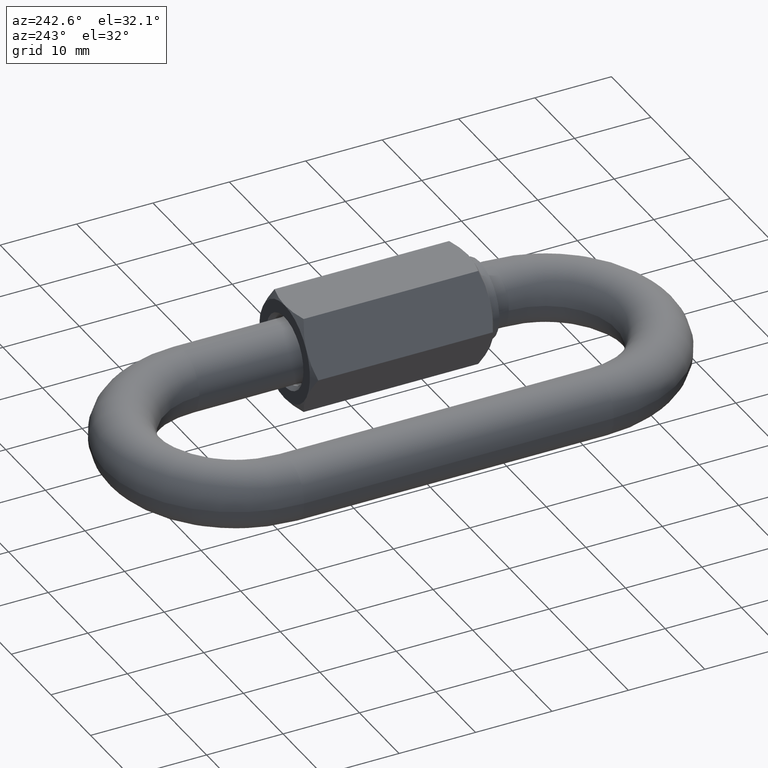
[diagram: clean part render]
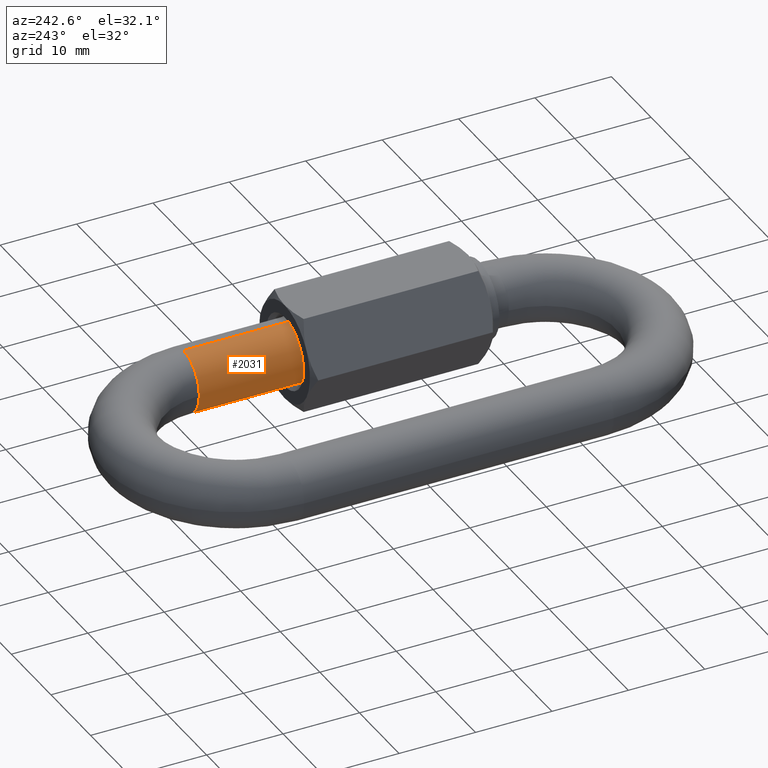
[diagram: same view with one face highlighted and labeled with its STEP entity id]
A machine part, auxiliary view. The second image highlights one B-rep face of the part: STEP entity #2031.
In plain terms, the highlighted cylindrical surface (edge-blend (fillet) strip) has radius 4 mm, axis along (-0, -1, -0).
Its self-contained STEP definition (entity closure, byte-faithful):
#132 = CYLINDRICAL_SURFACE ( 'NONE', #948, 3.999999999999997300 ) ;
#210 = DIRECTION ( 'NONE',  ( 0.0000000000000000000, 0.0000000000000000000, -1.000000000000000000 ) ) ;
#213 = CARTESIAN_POINT ( 'NONE',  ( 9.249999999999998200, 20.24999999999999300, -4.898587196589408900E-016 ) ) ;
#244 = DIRECTION ( 'NONE',  ( 0.0000000000000000000, 0.0000000000000000000, 1.000000000000000000 ) ) ;
#249 = CARTESIAN_POINT ( 'NONE',  ( 13.24999999999999600, 20.24999999999999300, 0.0000000000000000000 ) ) ;
#294 = CIRCLE ( 'NONE', #2000, 3.999999999999997300 ) ;
#338 = VECTOR ( 'NONE', #1400, 1000.000000000000000 ) ;
#447 = EDGE_CURVE ( 'NONE', #817, #1095, #688, .T. ) ;
#498 = CIRCLE ( 'NONE', #1762, 3.999999999999997300 ) ;
#499 = CARTESIAN_POINT ( 'NONE',  ( 13.24999999999999600, 20.24999999999999300, 0.0000000000000000000 ) ) ;
#513 = VERTEX_POINT ( 'NONE', #1142 ) ;
#544 = DIRECTION ( 'NONE',  ( 0.0000000000000000000, 0.0000000000000000000, -1.000000000000000000 ) ) ;
#641 = FACE_OUTER_BOUND ( 'NONE', #988, .T. ) ;
#667 = AXIS2_PLACEMENT_3D ( 'NONE', #1777, #1634, #210 ) ;
#688 = CIRCLE ( 'NONE', #667, 3.999999999999997300 ) ;
#728 = ORIENTED_EDGE ( 'NONE', *, *, #1781, .F. ) ;
#739 = LINE ( 'NONE', #928, #338 ) ;
#756 = VECTOR ( 'NONE', #1731, 1000.000000000000000 ) ;
#760 = CARTESIAN_POINT ( 'NONE',  ( 13.24999999999999600, 20.24999999999999300, 3.999999999999997300 ) ) ;
#768 = ORIENTED_EDGE ( 'NONE', *, *, #1210, .F. ) ;
#804 = VERTEX_POINT ( 'NONE', #213 ) ;
#808 = DIRECTION ( 'NONE',  ( 0.0000000000000000000, 0.0000000000000000000, 1.000000000000000000 ) ) ;
#817 = VERTEX_POINT ( 'NONE', #1656 ) ;
#928 = CARTESIAN_POINT ( 'NONE',  ( 13.24999999999999600, 20.24999999999999300, -3.999999999999997300 ) ) ;
#948 = AXIS2_PLACEMENT_3D ( 'NONE', #1956, #1337, #544 ) ;
#988 = EDGE_LOOP ( 'NONE', ( #728, #1692, #768, #1588, #1638 ) ) ;
#1084 = CARTESIAN_POINT ( 'NONE',  ( 13.24999999999999600, 20.24999999999999300, 3.999999999999997300 ) ) ;
#1095 = VERTEX_POINT ( 'NONE', #1408 ) ;
#1099 = VERTEX_POINT ( 'NONE', #1084 ) ;
#1116 = EDGE_CURVE ( 'NONE', #513, #817, #739, .T. ) ;
#1142 = CARTESIAN_POINT ( 'NONE',  ( 13.24999999999999600, 20.24999999999999300, -3.999999999999997300 ) ) ;
#1210 = EDGE_CURVE ( 'NONE', #513, #804, #498, .T. ) ;
#1260 = LINE ( 'NONE', #760, #756 ) ;
#1279 = EDGE_CURVE ( 'NONE', #804, #1099, #294, .T. ) ;
#1281 = DIRECTION ( 'NONE',  ( 0.0000000000000000000, 1.000000000000000000, 0.0000000000000000000 ) ) ;
#1337 = DIRECTION ( 'NONE',  ( -0.0000000000000000000, -1.000000000000000000, -0.0000000000000000000 ) ) ;
#1400 = DIRECTION ( 'NONE',  ( -0.0000000000000000000, -1.000000000000000000, -0.0000000000000000000 ) ) ;
#1408 = CARTESIAN_POINT ( 'NONE',  ( 13.24999999999999600, 6.166025403784432000, 3.999999999999997300 ) ) ;
#1588 = ORIENTED_EDGE ( 'NONE', *, *, #1116, .T. ) ;
#1634 = DIRECTION ( 'NONE',  ( -0.0000000000000000000, 1.000000000000000000, -0.0000000000000000000 ) ) ;
#1638 = ORIENTED_EDGE ( 'NONE', *, *, #447, .T. ) ;
#1656 = CARTESIAN_POINT ( 'NONE',  ( 13.24999999999999600, 6.166025403784432000, -3.999999999999997300 ) ) ;
#1692 = ORIENTED_EDGE ( 'NONE', *, *, #1279, .F. ) ;
#1731 = DIRECTION ( 'NONE',  ( -0.0000000000000000000, -1.000000000000000000, -0.0000000000000000000 ) ) ;
#1762 = AXIS2_PLACEMENT_3D ( 'NONE', #499, #1281, #808 ) ;
#1777 = CARTESIAN_POINT ( 'NONE',  ( 13.24999999999999600, 6.166025403784432000, 0.0000000000000000000 ) ) ;
#1781 = EDGE_CURVE ( 'NONE', #1099, #1095, #1260, .T. ) ;
#1956 = CARTESIAN_POINT ( 'NONE',  ( 13.24999999999999600, 20.24999999999999300, 0.0000000000000000000 ) ) ;
#1975 = DIRECTION ( 'NONE',  ( 0.0000000000000000000, 1.000000000000000000, 0.0000000000000000000 ) ) ;
#2000 = AXIS2_PLACEMENT_3D ( 'NONE', #249, #1975, #244 ) ;
#2031 = ADVANCED_FACE ( 'NONE', ( #641 ), #132, .T. ) ;